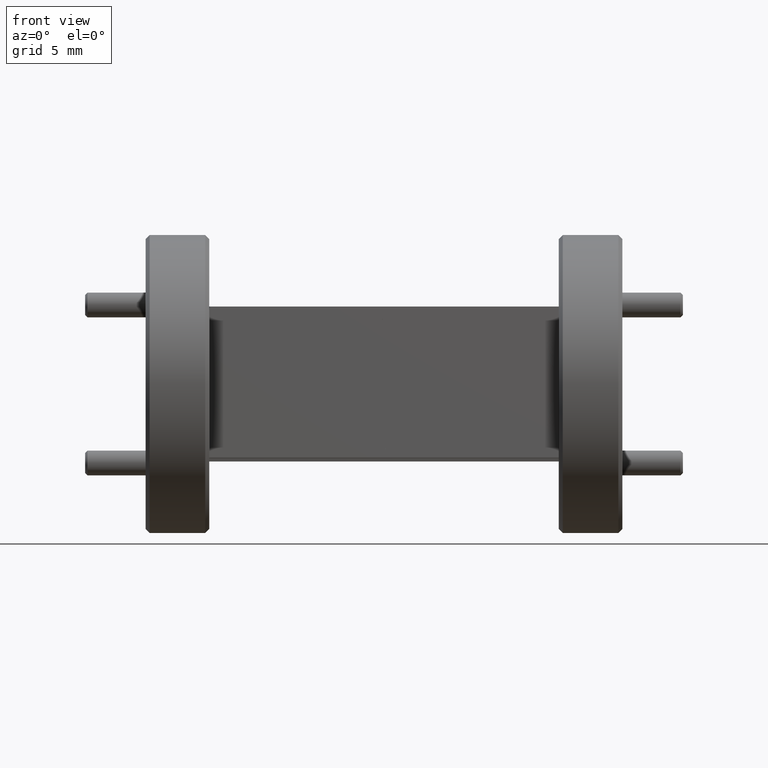
[diagram: clean part render]
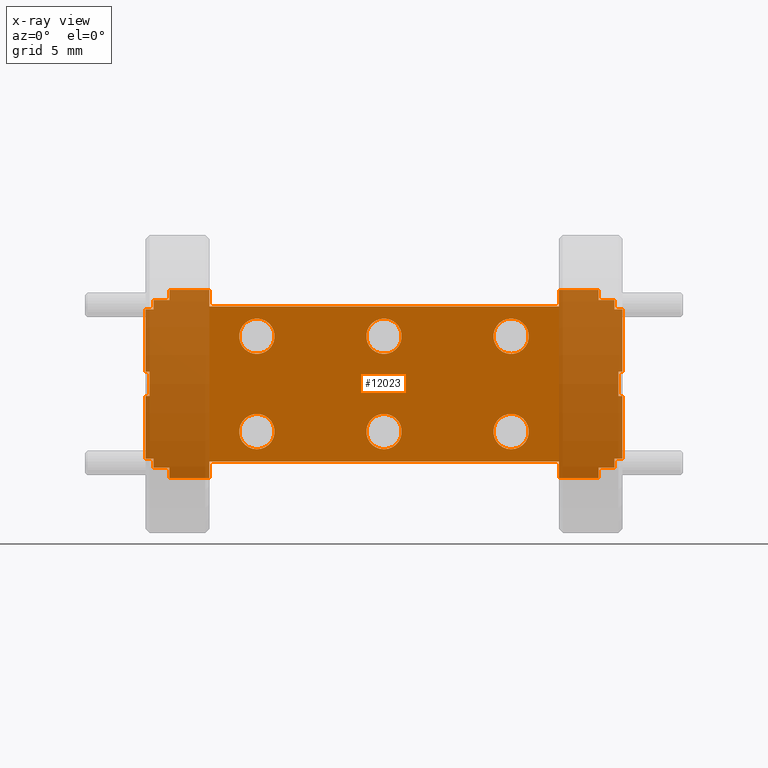
[diagram: x-ray — body ghosted, one internal face saturated and labeled with its STEP entity id]
A machine part, front view, then the same camera in x-ray: the body is ghosted and one INTERNAL B-rep face — a face not visible from any outside direction — is saturated and labeled: STEP entity #12023.
In plain terms, the highlighted planar face has unit normal (0, 1, 0).
Its self-contained STEP definition (entity closure, byte-faithful):
#13 = VERTEX_POINT ( 'NONE', #8938 ) ;
#70 = ORIENTED_EDGE ( 'NONE', *, *, #9017, .T. ) ;
#106 = EDGE_CURVE ( 'NONE', #1790, #223, #3694, .T. ) ;
#145 = VERTEX_POINT ( 'NONE', #11403 ) ;
#147 = DIRECTION ( 'NONE',  ( -0.000000000000000000, -0.000000000000000000, 1.000000000000000000 ) ) ;
#150 = VERTEX_POINT ( 'NONE', #3854 ) ;
#175 = VERTEX_POINT ( 'NONE', #6640 ) ;
#193 = LINE ( 'NONE', #8441, #7579 ) ;
#223 = VERTEX_POINT ( 'NONE', #10336 ) ;
#277 = DIRECTION ( 'NONE',  ( -1.000000000000000000, -0.000000000000000000, -0.000000000000000000 ) ) ;
#283 = DIRECTION ( 'NONE',  ( 1.000000000000000000, -0.000000000000000000, -0.000000000000000000 ) ) ;
#293 = DIRECTION ( 'NONE',  ( 0.000000000000000000, -0.000000000000000000, 1.000000000000000000 ) ) ;
#298 = CARTESIAN_POINT ( 'NONE',  ( 0.01245128250285995435, 0.6965558021064788274, 0.6769535146820031546 ) ) ;
#355 = LINE ( 'NONE', #3203, #12199 ) ;
#386 = CARTESIAN_POINT ( 'NONE',  ( -0.1275487174971400572, 0.6965558021064788274, 0.6844595147780062616 ) ) ;
#434 = CARTESIAN_POINT ( 'NONE',  ( -0.1475487174971400473, 0.6965558021064788274, 1.059447514586000061 ) ) ;
#479 = LINE ( 'NONE', #2294, #3097 ) ;
#500 = LINE ( 'NONE', #2314, #8780 ) ;
#551 = VERTEX_POINT ( 'NONE', #10054 ) ;
#556 = EDGE_CURVE ( 'NONE', #223, #1790, #8992, .T. ) ;
#575 = CARTESIAN_POINT ( 'NONE',  ( -0.1475487174971400473, 0.6965558021064788274, 0.8414535146820031342 ) ) ;
#644 = LINE ( 'NONE', #2702, #7048 ) ;
#751 = VECTOR ( 'NONE', #2477, 39.37007874015748143 ) ;
#760 = CARTESIAN_POINT ( 'NONE',  ( 0.9924512825028599661, 0.6965558021064788274, 1.108728802766129284 ) ) ;
#765 = CARTESIAN_POINT ( 'NONE',  ( 0.1324512825028599794, 0.6965558021064788274, 1.036453514682002641 ) ) ;
#831 = VERTEX_POINT ( 'NONE', #2361 ) ;
#855 = DIRECTION ( 'NONE',  ( -0.000000000000000000, -0.000000000000000000, -1.000000000000000000 ) ) ;
#903 = FACE_BOUND ( 'NONE', #10564, .T. ) ;
#928 = ORIENTED_EDGE ( 'NONE', *, *, #5811, .T. ) ;
#932 = DIRECTION ( 'NONE',  ( -0.000000000000000000, -1.000000000000000000, -0.000000000000000000 ) ) ;
#938 = VECTOR ( 'NONE', #9364, 39.37007874015748143 ) ;
#955 = EDGE_CURVE ( 'NONE', #150, #2991, #5695, .T. ) ;
#972 = FACE_BOUND ( 'NONE', #7963, .T. ) ;
#988 = VECTOR ( 'NONE', #9374, 39.37007874015748143 ) ;
#1032 = EDGE_CURVE ( 'NONE', #13, #1950, #6430, .T. ) ;
#1126 = DIRECTION ( 'NONE',  ( 0.000000000000000000, 0.000000000000000000, -1.000000000000000000 ) ) ;
#1139 = EDGE_CURVE ( 'NONE', #5357, #145, #5113, .T. ) ;
#1171 = EDGE_CURVE ( 'NONE', #11666, #1679, #6120, .T. ) ;
#1182 = ORIENTED_EDGE ( 'NONE', *, *, #7295, .T. ) ;
#1393 = DIRECTION ( 'NONE',  ( 1.000000000000000000, -0.000000000000000000, -0.000000000000000000 ) ) ;
#1513 = CARTESIAN_POINT ( 'NONE',  ( 1.052451282502859797, 0.6965558021064788274, 1.251953514682003110 ) ) ;
#1530 = ORIENTED_EDGE ( 'NONE', *, *, #1032, .F. ) ;
#1539 = CIRCLE ( 'NONE', #12032, 0.04449999999999948441 ) ;
#1555 = CARTESIAN_POINT ( 'NONE',  ( 0.9924512825028599661, 0.6965558021064788274, 0.8719535146820031057 ) ) ;
#1608 = DIRECTION ( 'NONE',  ( 0.000000000000000000, 0.000000000000000000, -1.000000000000000000 ) ) ;
#1648 = CARTESIAN_POINT ( 'NONE',  ( -0.08754871749714007723, 0.6965558021064788274, 1.083219587955932761 ) ) ;
#1658 = CARTESIAN_POINT ( 'NONE',  ( 0.4524512825028599861, 0.6965558021064788274, 0.7519535146820029992 ) ) ;
#1674 = CIRCLE ( 'NONE', #8224, 0.04449999999999948441 ) ;
#1679 = VERTEX_POINT ( 'NONE', #8067 ) ;
#1712 = ORIENTED_EDGE ( 'NONE', *, *, #6934, .F. ) ;
#1743 = ORIENTED_EDGE ( 'NONE', *, *, #955, .F. ) ;
#1759 = DIRECTION ( 'NONE',  ( 0.000000000000000000, 1.000000000000000000, 0.000000000000000000 ) ) ;
#1790 = VERTEX_POINT ( 'NONE', #5124 ) ;
#1836 = EDGE_CURVE ( 'NONE', #2199, #4386, #11557, .T. ) ;
#1856 = CARTESIAN_POINT ( 'NONE',  ( -0.1275487174971400572, 0.6965558021064788274, 1.059447514586000061 ) ) ;
#1886 = ORIENTED_EDGE ( 'NONE', *, *, #10727, .T. ) ;
#1887 = CARTESIAN_POINT ( 'NONE',  ( 0.1324512825028599794, 0.6965558021064788274, 0.7519535146820029992 ) ) ;
#1950 = VERTEX_POINT ( 'NONE', #10484 ) ;
#1954 = ORIENTED_EDGE ( 'NONE', *, *, #4525, .F. ) ;
#1959 = DIRECTION ( 'NONE',  ( -0.000000000000000000, -1.000000000000000000, -0.000000000000000000 ) ) ;
#1961 = CARTESIAN_POINT ( 'NONE',  ( -0.1275487174971400572, 0.6965558021064788274, 0.8719535146820031057 ) ) ;
#1978 = DIRECTION ( 'NONE',  ( 0.000000000000000000, 0.000000000000000000, -1.000000000000000000 ) ) ;
#1986 = DIRECTION ( 'NONE',  ( -1.000000000000000000, 0.000000000000000000, 0.000000000000000000 ) ) ;
#2099 = VERTEX_POINT ( 'NONE', #10012 ) ;
#2142 = DIRECTION ( 'NONE',  ( 0.000000000000000000, 0.000000000000000000, 1.000000000000000000 ) ) ;
#2199 = VERTEX_POINT ( 'NONE', #3348 ) ;
#2202 = DIRECTION ( 'NONE',  ( 1.000000000000000000, -0.000000000000000000, -0.000000000000000000 ) ) ;
#2216 = CARTESIAN_POINT ( 'NONE',  ( 0.7724512825028599927, 0.6965558021064788274, 0.7519535146820029992 ) ) ;
#2242 = ORIENTED_EDGE ( 'NONE', *, *, #8996, .F. ) ;
#2253 = ORIENTED_EDGE ( 'NONE', *, *, #1139, .F. ) ;
#2254 = ORIENTED_EDGE ( 'NONE', *, *, #7170, .T. ) ;
#2294 = CARTESIAN_POINT ( 'NONE',  ( 1.032451282502860002, 0.6965558021064788274, 0.6844595147780062616 ) ) ;
#2314 = CARTESIAN_POINT ( 'NONE',  ( -0.1275487174971400572, 0.6965558021064788274, 1.059447514586000061 ) ) ;
#2361 = CARTESIAN_POINT ( 'NONE',  ( 0.9924512825028599661, 0.6965558021064788274, 0.6351782265978769271 ) ) ;
#2374 = DIRECTION ( 'NONE',  ( 1.000000000000000000, 0.000000000000000000, 0.000000000000000000 ) ) ;
#2385 = CARTESIAN_POINT ( 'NONE',  ( 0.4524512825028599861, 0.6965558021064788274, 0.9919535146820032123 ) ) ;
#2448 = CARTESIAN_POINT ( 'NONE',  ( 1.042451282502859788, 0.6965558021064788274, 0.9024535146820030773 ) ) ;
#2475 = ORIENTED_EDGE ( 'NONE', *, *, #7542, .F. ) ;
#2477 = DIRECTION ( 'NONE',  ( 1.000000000000000000, 0.000000000000000000, 0.000000000000000000 ) ) ;
#2565 = ORIENTED_EDGE ( 'NONE', *, *, #11133, .F. ) ;
#2606 = CARTESIAN_POINT ( 'NONE',  ( -0.08754871749714007723, 0.6965558021064788274, 1.108728802766129284 ) ) ;
#2659 = DIRECTION ( 'NONE',  ( -0.000000000000000000, -1.000000000000000000, -0.000000000000000000 ) ) ;
#2662 = CIRCLE ( 'NONE', #5859, 0.04449999999999948441 ) ;
#2669 = VECTOR ( 'NONE', #3892, 39.37007874015748143 ) ;
#2673 = CIRCLE ( 'NONE', #6864, 0.04449999999999948441 ) ;
#2686 = EDGE_CURVE ( 'NONE', #2199, #5357, #4480, .T. ) ;
#2702 = CARTESIAN_POINT ( 'NONE',  ( 1.052451282502860019, 0.6965558021064788274, 0.9024535146820030773 ) ) ;
#2703 = FACE_OUTER_BOUND ( 'NONE', #10368, .T. ) ;
#2708 = VECTOR ( 'NONE', #5388, 39.37007874015748143 ) ;
#2719 = CARTESIAN_POINT ( 'NONE',  ( 0.4524512825028599861, 0.6965558021064788274, 1.036453514682002641 ) ) ;
#2778 = VECTOR ( 'NONE', #12271, 39.37007874015748143 ) ;
#2789 = ORIENTED_EDGE ( 'NONE', *, *, #9226, .T. ) ;
#2803 = VERTEX_POINT ( 'NONE', #765 ) ;
#2841 = LINE ( 'NONE', #11459, #9607 ) ;
#2894 = LINE ( 'NONE', #1961, #7325 ) ;
#2988 = VERTEX_POINT ( 'NONE', #6546 ) ;
#2991 = VERTEX_POINT ( 'NONE', #11178 ) ;
#3009 = CARTESIAN_POINT ( 'NONE',  ( 1.052451282502860019, 0.6965558021064788274, 0.8414535146820031342 ) ) ;
#3052 = ORIENTED_EDGE ( 'NONE', *, *, #11155, .F. ) ;
#3097 = VECTOR ( 'NONE', #5082, 39.37007874015748143 ) ;
#3127 = EDGE_CURVE ( 'NONE', #1950, #13, #2662, .T. ) ;
#3146 = CARTESIAN_POINT ( 'NONE',  ( -0.08754871749714007723, 0.6965558021064788274, 0.6606874414080734503 ) ) ;
#3147 = CARTESIAN_POINT ( 'NONE',  ( 0.4524512825028599861, 0.6965558021064788274, 0.9474535146820037834 ) ) ;
#3157 = DIRECTION ( 'NONE',  ( 1.000000000000000000, 0.000000000000000000, -0.000000000000000000 ) ) ;
#3164 = VERTEX_POINT ( 'NONE', #8842 ) ;
#3188 = CARTESIAN_POINT ( 'NONE',  ( 0.1324512825028599794, 0.6965558021064788274, 0.7519535146820029992 ) ) ;
#3203 = CARTESIAN_POINT ( 'NONE',  ( -0.08754871749714007723, 0.6965558021064788274, 0.8719535146820031057 ) ) ;
#3260 = VECTOR ( 'NONE', #293, 39.37007874015748143 ) ;
#3262 = VECTOR ( 'NONE', #2202, 39.37007874015748143 ) ;
#3310 = VERTEX_POINT ( 'NONE', #2448 ) ;
#3337 = CARTESIAN_POINT ( 'NONE',  ( 0.9924512825028599661, 0.6965558021064788274, 1.083219587955932761 ) ) ;
#3338 = ORIENTED_EDGE ( 'NONE', *, *, #3127, .F. ) ;
#3348 = CARTESIAN_POINT ( 'NONE',  ( 1.032451282502860002, 0.6965558021064788274, 1.083219587955932761 ) ) ;
#3362 = VERTEX_POINT ( 'NONE', #5079 ) ;
#3399 = DIRECTION ( 'NONE',  ( -0.000000000000000000, -1.000000000000000000, -0.000000000000000000 ) ) ;
#3424 = VERTEX_POINT ( 'NONE', #3146 ) ;
#3493 = CARTESIAN_POINT ( 'NONE',  ( 0.8924512825028599883, 0.6965558021064788274, 0.6769535146820031546 ) ) ;
#3512 = CARTESIAN_POINT ( 'NONE',  ( 0.7724512825028599927, 0.6965558021064788274, 0.7074535146820035703 ) ) ;
#3514 = LINE ( 'NONE', #3767, #3913 ) ;
#3539 = DIRECTION ( 'NONE',  ( 0.000000000000000000, 0.000000000000000000, -1.000000000000000000 ) ) ;
#3554 = ORIENTED_EDGE ( 'NONE', *, *, #6792, .F. ) ;
#3603 = DIRECTION ( 'NONE',  ( 0.000000000000000000, 0.000000000000000000, -1.000000000000000000 ) ) ;
#3608 = CARTESIAN_POINT ( 'NONE',  ( 0.7724512825028599927, 0.6965558021064788274, 0.9919535146820032123 ) ) ;
#3615 = EDGE_CURVE ( 'NONE', #11666, #831, #4894, .T. ) ;
#3694 = CIRCLE ( 'NONE', #5280, 0.04449999999999948441 ) ;
#3767 = CARTESIAN_POINT ( 'NONE',  ( -0.1375487174971400106, 0.6965558021064788274, 0.8414535146820031342 ) ) ;
#3774 = DIRECTION ( 'NONE',  ( 0.000000000000000000, 0.000000000000000000, -1.000000000000000000 ) ) ;
#3788 = CARTESIAN_POINT ( 'NONE',  ( 0.8924512825028599883, 0.6965558021064788274, 0.6769535146820031546 ) ) ;
#3837 = CARTESIAN_POINT ( 'NONE',  ( 0.01245128250286002200, 0.6965558021064788274, 1.108728802766129284 ) ) ;
#3854 = CARTESIAN_POINT ( 'NONE',  ( 1.042451282502859788, 0.6965558021064788274, 0.8414535146820031342 ) ) ;
#3892 = DIRECTION ( 'NONE',  ( 1.000000000000000000, 0.000000000000000000, -0.000000000000000000 ) ) ;
#3893 = DIRECTION ( 'NONE',  ( -1.000000000000000000, 0.000000000000000000, 0.000000000000000000 ) ) ;
#3895 = FACE_BOUND ( 'NONE', #12268, .T. ) ;
#3913 = VECTOR ( 'NONE', #11057, 39.37007874015748143 ) ;
#3949 = CIRCLE ( 'NONE', #6715, 0.04449999999999948441 ) ;
#3969 = CARTESIAN_POINT ( 'NONE',  ( 0.9924512825028599661, 0.6965558021064788274, 0.8719535146820031057 ) ) ;
#3980 = VERTEX_POINT ( 'NONE', #2719 ) ;
#4015 = ORIENTED_EDGE ( 'NONE', *, *, #4349, .F. ) ;
#4050 = CIRCLE ( 'NONE', #5631, 0.04449999999999948441 ) ;
#4082 = VERTEX_POINT ( 'NONE', #3512 ) ;
#4117 = LINE ( 'NONE', #7890, #9773 ) ;
#4138 = CARTESIAN_POINT ( 'NONE',  ( -0.1475487174971400473, 0.6965558021064788274, 1.251953514682003110 ) ) ;
#4152 = DIRECTION ( 'NONE',  ( -0.000000000000000000, -1.000000000000000000, -0.000000000000000000 ) ) ;
#4186 = VECTOR ( 'NONE', #1986, 39.37007874015748143 ) ;
#4191 = DIRECTION ( 'NONE',  ( -0.000000000000000000, -1.000000000000000000, -0.000000000000000000 ) ) ;
#4254 = LINE ( 'NONE', #1513, #7089 ) ;
#4270 = DIRECTION ( 'NONE',  ( 0.000000000000000000, -0.000000000000000000, 1.000000000000000000 ) ) ;
#4302 = ORIENTED_EDGE ( 'NONE', *, *, #6423, .F. ) ;
#4349 = EDGE_CURVE ( 'NONE', #11276, #5593, #355, .T. ) ;
#4369 = VERTEX_POINT ( 'NONE', #8050 ) ;
#4386 = VERTEX_POINT ( 'NONE', #3337 ) ;
#4453 = DIRECTION ( 'NONE',  ( 0.000000000000000000, 0.000000000000000000, -1.000000000000000000 ) ) ;
#4454 = CARTESIAN_POINT ( 'NONE',  ( 0.1324512825028599794, 0.6965558021064788274, 0.9919535146820032123 ) ) ;
#4480 = LINE ( 'NONE', #6343, #8255 ) ;
#4525 = EDGE_CURVE ( 'NONE', #4369, #3362, #3514, .T. ) ;
#4581 = CARTESIAN_POINT ( 'NONE',  ( -0.1475487174971400473, 0.6965558021064788274, 0.6844595147780061506 ) ) ;
#4591 = EDGE_CURVE ( 'NONE', #10805, #5593, #8601, .T. ) ;
#4659 = VECTOR ( 'NONE', #6116, 39.37007874015748143 ) ;
#4690 = VECTOR ( 'NONE', #147, 39.37007874015748143 ) ;
#4754 = CARTESIAN_POINT ( 'NONE',  ( 0.4524512825028599861, 0.6965558021064788274, 0.8719535146820031057 ) ) ;
#4781 = LINE ( 'NONE', #9409, #2778 ) ;
#4821 = DIRECTION ( 'NONE',  ( 0.000000000000000000, 0.000000000000000000, -1.000000000000000000 ) ) ;
#4822 = ORIENTED_EDGE ( 'NONE', *, *, #11027, .T. ) ;
#4863 = VECTOR ( 'NONE', #1393, 39.37007874015748143 ) ;
#4894 = LINE ( 'NONE', #3969, #7814 ) ;
#4936 = VERTEX_POINT ( 'NONE', #11993 ) ;
#5059 = CIRCLE ( 'NONE', #9602, 0.04449999999999948441 ) ;
#5079 = CARTESIAN_POINT ( 'NONE',  ( -0.1375487174971400106, 0.6965558021064788274, 0.9024535146820030773 ) ) ;
#5082 = DIRECTION ( 'NONE',  ( -1.000000000000000000, 0.000000000000000000, 0.000000000000000000 ) ) ;
#5113 = LINE ( 'NONE', #6000, #3262 ) ;
#5124 = CARTESIAN_POINT ( 'NONE',  ( 0.7724512825028599927, 0.6965558021064788274, 1.036453514682002641 ) ) ;
#5176 = EDGE_CURVE ( 'NONE', #3980, #9287, #4050, .T. ) ;
#5280 = AXIS2_PLACEMENT_3D ( 'NONE', #6339, #11851, #3539 ) ;
#5282 = VERTEX_POINT ( 'NONE', #5475 ) ;
#5350 = LINE ( 'NONE', #5473, #11599 ) ;
#5355 = ORIENTED_EDGE ( 'NONE', *, *, #3615, .F. ) ;
#5357 = VERTEX_POINT ( 'NONE', #9426 ) ;
#5382 = ORIENTED_EDGE ( 'NONE', *, *, #1171, .T. ) ;
#5384 = ORIENTED_EDGE ( 'NONE', *, *, #11500, .F. ) ;
#5388 = DIRECTION ( 'NONE',  ( -1.000000000000000000, -0.000000000000000000, -0.000000000000000000 ) ) ;
#5420 = ORIENTED_EDGE ( 'NONE', *, *, #9389, .F. ) ;
#5440 = VERTEX_POINT ( 'NONE', #9920 ) ;
#5442 = EDGE_LOOP ( 'NONE', ( #8766, #11543 ) ) ;
#5473 = CARTESIAN_POINT ( 'NONE',  ( -0.1475487174971400473, 0.6965558021064788274, 0.6351782265978769271 ) ) ;
#5475 = CARTESIAN_POINT ( 'NONE',  ( 1.052451282502860019, 0.6965558021064788274, 0.9024535146820030773 ) ) ;
#5501 = VERTEX_POINT ( 'NONE', #434 ) ;
#5519 = LINE ( 'NONE', #1648, #2708 ) ;
#5564 = EDGE_CURVE ( 'NONE', #12079, #6632, #6164, .T. ) ;
#5593 = VERTEX_POINT ( 'NONE', #2606 ) ;
#5631 = AXIS2_PLACEMENT_3D ( 'NONE', #2385, #4191, #7965 ) ;
#5646 = ORIENTED_EDGE ( 'NONE', *, *, #7052, .F. ) ;
#5695 = LINE ( 'NONE', #3009, #2669 ) ;
#5702 = FACE_BOUND ( 'NONE', #8001, .T. ) ;
#5746 = CARTESIAN_POINT ( 'NONE',  ( 0.8924512825028599883, 0.6965558021064788274, 1.108728802766129284 ) ) ;
#5797 = EDGE_CURVE ( 'NONE', #12191, #9325, #7632, .T. ) ;
#5803 = ORIENTED_EDGE ( 'NONE', *, *, #1836, .T. ) ;
#5811 = EDGE_CURVE ( 'NONE', #9943, #6609, #4781, .T. ) ;
#5817 = CARTESIAN_POINT ( 'NONE',  ( -0.1275487174971400572, 0.6965558021064788274, 1.083219587955932761 ) ) ;
#5831 = FACE_BOUND ( 'NONE', #8817, .T. ) ;
#5859 = AXIS2_PLACEMENT_3D ( 'NONE', #3188, #6057, #4821 ) ;
#6000 = CARTESIAN_POINT ( 'NONE',  ( 1.032451282502860002, 0.6965558021064788274, 1.059447514586000061 ) ) ;
#6005 = ORIENTED_EDGE ( 'NONE', *, *, #10701, .F. ) ;
#6018 = ORIENTED_EDGE ( 'NONE', *, *, #6286, .T. ) ;
#6021 = CARTESIAN_POINT ( 'NONE',  ( 0.9924512825028599661, 0.6965558021064788274, 0.6606874414080734503 ) ) ;
#6056 = CARTESIAN_POINT ( 'NONE',  ( 0.8924512825028599883, 0.6965558021064788274, 1.066953514682003279 ) ) ;
#6057 = DIRECTION ( 'NONE',  ( -0.000000000000000000, -1.000000000000000000, -0.000000000000000000 ) ) ;
#6116 = DIRECTION ( 'NONE',  ( 0.000000000000000000, 0.000000000000000000, -1.000000000000000000 ) ) ;
#6120 = LINE ( 'NONE', #7847, #4863 ) ;
#6164 = CIRCLE ( 'NONE', #11679, 0.04449999999999948441 ) ;
#6223 = DIRECTION ( 'NONE',  ( -1.000000000000000000, -0.000000000000000000, -0.000000000000000000 ) ) ;
#6286 = EDGE_CURVE ( 'NONE', #9325, #10805, #6603, .T. ) ;
#6292 = ORIENTED_EDGE ( 'NONE', *, *, #5564, .F. ) ;
#6313 = VECTOR ( 'NONE', #11580, 39.37007874015748143 ) ;
#6339 = CARTESIAN_POINT ( 'NONE',  ( 0.7724512825028599927, 0.6965558021064788274, 0.9919535146820032123 ) ) ;
#6343 = CARTESIAN_POINT ( 'NONE',  ( 1.032451282502860002, 0.6965558021064788274, 0.8719535146820031057 ) ) ;
#6423 = EDGE_CURVE ( 'NONE', #7951, #9757, #8837, .T. ) ;
#6427 = VECTOR ( 'NONE', #855, 39.37007874015748143 ) ;
#6430 = CIRCLE ( 'NONE', #7643, 0.04449999999999948441 ) ;
#6460 = VECTOR ( 'NONE', #277, 39.37007874015748143 ) ;
#6510 = DIRECTION ( 'NONE',  ( -0.000000000000000000, -1.000000000000000000, -0.000000000000000000 ) ) ;
#6511 = CARTESIAN_POINT ( 'NONE',  ( 1.032451282502860002, 0.6965558021064788274, 0.8719535146820031057 ) ) ;
#6545 = DIRECTION ( 'NONE',  ( 0.000000000000000000, -0.000000000000000000, 1.000000000000000000 ) ) ;
#6546 = CARTESIAN_POINT ( 'NONE',  ( -0.08754871749714007723, 0.6965558021064788274, 0.6351782265978769271 ) ) ;
#6603 = LINE ( 'NONE', #10619, #11707 ) ;
#6609 = VERTEX_POINT ( 'NONE', #5746 ) ;
#6632 = VERTEX_POINT ( 'NONE', #11337 ) ;
#6640 = CARTESIAN_POINT ( 'NONE',  ( -0.1275487174971400572, 0.6965558021064788274, 0.6606874414080734503 ) ) ;
#6693 = EDGE_CURVE ( 'NONE', #3362, #11231, #193, .T. ) ;
#6715 = AXIS2_PLACEMENT_3D ( 'NONE', #11131, #6510, #11963 ) ;
#6747 = VECTOR ( 'NONE', #10277, 39.37007874015748143 ) ;
#6778 = LINE ( 'NONE', #3788, #7899 ) ;
#6792 = EDGE_CURVE ( 'NONE', #5501, #10096, #500, .T. ) ;
#6864 = AXIS2_PLACEMENT_3D ( 'NONE', #4454, #12018, #3774 ) ;
#6877 = DIRECTION ( 'NONE',  ( -1.000000000000000000, 0.000000000000000000, 0.000000000000000000 ) ) ;
#6880 = LINE ( 'NONE', #9706, #11385 ) ;
#6887 = CARTESIAN_POINT ( 'NONE',  ( -0.08754871749714007723, 0.6965558021064788274, 0.8719535146820031057 ) ) ;
#6934 = EDGE_CURVE ( 'NONE', #2803, #2099, #3949, .T. ) ;
#6941 = CARTESIAN_POINT ( 'NONE',  ( 0.01245128250285995435, 0.6965558021064788274, 1.066953514682003279 ) ) ;
#6985 = LINE ( 'NONE', #10737, #938 ) ;
#7031 = EDGE_CURVE ( 'NONE', #12283, #8483, #6778, .T. ) ;
#7036 = CARTESIAN_POINT ( 'NONE',  ( 0.4524512825028599861, 0.6965558021064788274, 0.7519535146820029992 ) ) ;
#7048 = VECTOR ( 'NONE', #3893, 39.37007874015748143 ) ;
#7052 = EDGE_CURVE ( 'NONE', #4082, #9136, #1539, .T. ) ;
#7056 = ORIENTED_EDGE ( 'NONE', *, *, #5176, .F. ) ;
#7089 = VECTOR ( 'NONE', #8036, 39.37007874015748143 ) ;
#7138 = ORIENTED_EDGE ( 'NONE', *, *, #8200, .F. ) ;
#7170 = EDGE_CURVE ( 'NONE', #9824, #4936, #10828, .T. ) ;
#7228 = DIRECTION ( 'NONE',  ( -0.000000000000000000, -1.000000000000000000, -0.000000000000000000 ) ) ;
#7272 = DIRECTION ( 'NONE',  ( 0.000000000000000000, 0.000000000000000000, -1.000000000000000000 ) ) ;
#7295 = EDGE_CURVE ( 'NONE', #175, #3424, #11898, .T. ) ;
#7321 = DIRECTION ( 'NONE',  ( 1.000000000000000000, -0.000000000000000000, -0.000000000000000000 ) ) ;
#7325 = VECTOR ( 'NONE', #7604, 39.37007874015748143 ) ;
#7400 = LINE ( 'NONE', #8387, #988 ) ;
#7428 = CARTESIAN_POINT ( 'NONE',  ( 0.7724512825028599927, 0.6965558021064788274, 0.7964535146820025391 ) ) ;
#7473 = EDGE_CURVE ( 'NONE', #2099, #2803, #2673, .T. ) ;
#7508 = ORIENTED_EDGE ( 'NONE', *, *, #11253, .F. ) ;
#7512 = ORIENTED_EDGE ( 'NONE', *, *, #7473, .F. ) ;
#7542 = EDGE_CURVE ( 'NONE', #2991, #5440, #2841, .T. ) ;
#7579 = VECTOR ( 'NONE', #8500, 39.37007874015748143 ) ;
#7604 = DIRECTION ( 'NONE',  ( 0.000000000000000000, -0.000000000000000000, 1.000000000000000000 ) ) ;
#7632 = LINE ( 'NONE', #8484, #4186 ) ;
#7636 = CARTESIAN_POINT ( 'NONE',  ( 0.7724512825028599927, 0.6965558021064788274, 0.7519535146820029992 ) ) ;
#7643 = AXIS2_PLACEMENT_3D ( 'NONE', #1887, #1959, #9510 ) ;
#7682 = PLANE ( 'NONE',  #7750 ) ;
#7701 = LINE ( 'NONE', #11390, #6427 ) ;
#7719 = ORIENTED_EDGE ( 'NONE', *, *, #2686, .F. ) ;
#7750 = AXIS2_PLACEMENT_3D ( 'NONE', #4754, #1759, #6545 ) ;
#7814 = VECTOR ( 'NONE', #11511, 39.37007874015748143 ) ;
#7847 = CARTESIAN_POINT ( 'NONE',  ( 0.9924512825028599661, 0.6965558021064788274, 0.6606874414080734503 ) ) ;
#7890 = CARTESIAN_POINT ( 'NONE',  ( 1.052451282502860019, 0.6965558021064788274, 0.8414535146820031342 ) ) ;
#7899 = VECTOR ( 'NONE', #8422, 39.37007874015748143 ) ;
#7907 = ORIENTED_EDGE ( 'NONE', *, *, #6693, .F. ) ;
#7910 = DIRECTION ( 'NONE',  ( -0.000000000000000000, -0.000000000000000000, 1.000000000000000000 ) ) ;
#7927 = DIRECTION ( 'NONE',  ( 0.000000000000000000, 0.000000000000000000, -1.000000000000000000 ) ) ;
#7938 = LINE ( 'NONE', #6887, #3260 ) ;
#7949 = LINE ( 'NONE', #11071, #10195 ) ;
#7951 = VERTEX_POINT ( 'NONE', #4581 ) ;
#7956 = CARTESIAN_POINT ( 'NONE',  ( -0.08754871749714007723, 0.6965558021064788274, 1.083219587955932761 ) ) ;
#7963 = EDGE_LOOP ( 'NONE', ( #1530, #3338 ) ) ;
#7965 = DIRECTION ( 'NONE',  ( 0.000000000000000000, 0.000000000000000000, -1.000000000000000000 ) ) ;
#8001 = EDGE_LOOP ( 'NONE', ( #6292, #10856 ) ) ;
#8021 = LINE ( 'NONE', #1555, #4659 ) ;
#8036 = DIRECTION ( 'NONE',  ( 0.000000000000000000, 0.000000000000000000, -1.000000000000000000 ) ) ;
#8050 = CARTESIAN_POINT ( 'NONE',  ( -0.1375487174971400106, 0.6965558021064788274, 0.8414535146820031342 ) ) ;
#8061 = CIRCLE ( 'NONE', #11815, 0.04449999999999948441 ) ;
#8067 = CARTESIAN_POINT ( 'NONE',  ( 1.032451282502860002, 0.6965558021064788274, 0.6606874414080734503 ) ) ;
#8146 = EDGE_CURVE ( 'NONE', #145, #5282, #4254, .T. ) ;
#8200 = EDGE_CURVE ( 'NONE', #175, #551, #6985, .T. ) ;
#8224 = AXIS2_PLACEMENT_3D ( 'NONE', #2216, #4152, #7927 ) ;
#8255 = VECTOR ( 'NONE', #1608, 39.37007874015748143 ) ;
#8359 = LINE ( 'NONE', #6511, #6747 ) ;
#8375 = VERTEX_POINT ( 'NONE', #5817 ) ;
#8385 = EDGE_CURVE ( 'NONE', #11231, #5501, #9558, .T. ) ;
#8387 = CARTESIAN_POINT ( 'NONE',  ( 1.042451282502859788, 0.6965558021064788274, 0.8414535146820031342 ) ) ;
#8394 = AXIS2_PLACEMENT_3D ( 'NONE', #3608, #7228, #10972 ) ;
#8407 = ORIENTED_EDGE ( 'NONE', *, *, #4591, .T. ) ;
#8422 = DIRECTION ( 'NONE',  ( 0.000000000000000000, 0.000000000000000000, -1.000000000000000000 ) ) ;
#8441 = CARTESIAN_POINT ( 'NONE',  ( 1.052451282502860019, 0.6965558021064788274, 0.9024535146820030773 ) ) ;
#8483 = VERTEX_POINT ( 'NONE', #9742 ) ;
#8484 = CARTESIAN_POINT ( 'NONE',  ( 0.8924512825028599883, 0.6965558021064788274, 1.066953514682003279 ) ) ;
#8500 = DIRECTION ( 'NONE',  ( -1.000000000000000000, 0.000000000000000000, 0.000000000000000000 ) ) ;
#8502 = EDGE_CURVE ( 'NONE', #551, #7951, #9929, .T. ) ;
#8590 = CARTESIAN_POINT ( 'NONE',  ( -0.1475487174971399085, 0.6965558021064788274, 0.9024535146820030773 ) ) ;
#8593 = CARTESIAN_POINT ( 'NONE',  ( 0.4524512825028599861, 0.6965558021064788274, 0.7074535146820035703 ) ) ;
#8601 = LINE ( 'NONE', #10631, #6460 ) ;
#8749 = EDGE_CURVE ( 'NONE', #2988, #9824, #5350, .T. ) ;
#8766 = ORIENTED_EDGE ( 'NONE', *, *, #556, .F. ) ;
#8780 = VECTOR ( 'NONE', #2374, 39.37007874015748143 ) ;
#8787 = CARTESIAN_POINT ( 'NONE',  ( 0.9924512825028599661, 0.6965558021064788274, 1.083219587955932761 ) ) ;
#8817 = EDGE_LOOP ( 'NONE', ( #5646, #11242 ) ) ;
#8837 = LINE ( 'NONE', #4138, #8945 ) ;
#8842 = CARTESIAN_POINT ( 'NONE',  ( 1.032451282502860002, 0.6965558021064788274, 0.6844595147780062616 ) ) ;
#8938 = CARTESIAN_POINT ( 'NONE',  ( 0.1324512825028599794, 0.6965558021064788274, 0.7074535146820035703 ) ) ;
#8945 = VECTOR ( 'NONE', #7910, 39.37007874015748143 ) ;
#8992 = CIRCLE ( 'NONE', #8394, 0.04449999999999948441 ) ;
#8996 = EDGE_CURVE ( 'NONE', #9757, #4369, #4117, .T. ) ;
#9017 = EDGE_CURVE ( 'NONE', #4936, #12283, #7949, .T. ) ;
#9041 = ORIENTED_EDGE ( 'NONE', *, *, #9755, .F. ) ;
#9122 = ORIENTED_EDGE ( 'NONE', *, *, #8502, .F. ) ;
#9136 = VERTEX_POINT ( 'NONE', #7428 ) ;
#9226 = EDGE_CURVE ( 'NONE', #6609, #12191, #7701, .T. ) ;
#9287 = VERTEX_POINT ( 'NONE', #3147 ) ;
#9325 = VERTEX_POINT ( 'NONE', #6941 ) ;
#9364 = DIRECTION ( 'NONE',  ( 0.000000000000000000, -0.000000000000000000, 1.000000000000000000 ) ) ;
#9374 = DIRECTION ( 'NONE',  ( 0.000000000000000000, 0.000000000000000000, -1.000000000000000000 ) ) ;
#9389 = EDGE_CURVE ( 'NONE', #2988, #3424, #7938, .T. ) ;
#9409 = CARTESIAN_POINT ( 'NONE',  ( 1.052451282502860019, 0.6965558021064788274, 1.108728802766129284 ) ) ;
#9426 = CARTESIAN_POINT ( 'NONE',  ( 1.032451282502860002, 0.6965558021064788274, 1.059447514586000283 ) ) ;
#9510 = DIRECTION ( 'NONE',  ( 0.000000000000000000, 0.000000000000000000, -1.000000000000000000 ) ) ;
#9558 = LINE ( 'NONE', #10545, #4690 ) ;
#9602 = AXIS2_PLACEMENT_3D ( 'NONE', #7036, #10790, #3603 ) ;
#9607 = VECTOR ( 'NONE', #1978, 39.37007874015748143 ) ;
#9706 = CARTESIAN_POINT ( 'NONE',  ( 1.052451282502860019, 0.6965558021064788274, 0.6351782265978769271 ) ) ;
#9742 = CARTESIAN_POINT ( 'NONE',  ( 0.8924512825028599883, 0.6965558021064788274, 0.6351782265978769271 ) ) ;
#9755 = EDGE_CURVE ( 'NONE', #9943, #4386, #8021, .T. ) ;
#9757 = VERTEX_POINT ( 'NONE', #575 ) ;
#9773 = VECTOR ( 'NONE', #3157, 39.37007874015748143 ) ;
#9824 = VERTEX_POINT ( 'NONE', #11914 ) ;
#9855 = EDGE_CURVE ( 'NONE', #6632, #12079, #5059, .T. ) ;
#9920 = CARTESIAN_POINT ( 'NONE',  ( 1.052451282502860019, 0.6965558021064788274, 0.6844595147780062616 ) ) ;
#9929 = LINE ( 'NONE', #386, #10530 ) ;
#9943 = VERTEX_POINT ( 'NONE', #760 ) ;
#10012 = CARTESIAN_POINT ( 'NONE',  ( 0.1324512825028599794, 0.6965558021064788274, 0.9474535146820037834 ) ) ;
#10054 = CARTESIAN_POINT ( 'NONE',  ( -0.1275487174971400572, 0.6965558021064788274, 0.6844595147780061506 ) ) ;
#10096 = VERTEX_POINT ( 'NONE', #1856 ) ;
#10116 = ORIENTED_EDGE ( 'NONE', *, *, #5797, .T. ) ;
#10157 = ORIENTED_EDGE ( 'NONE', *, *, #8385, .F. ) ;
#10195 = VECTOR ( 'NONE', #7321, 39.37007874015748143 ) ;
#10202 = CARTESIAN_POINT ( 'NONE',  ( -0.08754871749714007723, 0.6965558021064788274, 0.6606874414080734503 ) ) ;
#10277 = DIRECTION ( 'NONE',  ( 0.000000000000000000, 0.000000000000000000, -1.000000000000000000 ) ) ;
#10297 = ORIENTED_EDGE ( 'NONE', *, *, #10566, .F. ) ;
#10336 = CARTESIAN_POINT ( 'NONE',  ( 0.7724512825028599927, 0.6965558021064788274, 0.9474535146820037834 ) ) ;
#10368 = EDGE_LOOP ( 'NONE', ( #7719, #5803, #9041, #928, #2789, #10116, #6018, #8407, #4015, #1886, #3052, #3554, #10157, #7907, #1954, #2242, #4302, #9122, #7138, #1182, #5420, #11946, #2254, #70, #11741, #4822, #5355, #5382, #5384, #10297, #2475, #1743, #7508, #2565, #10862, #2253 ) ) ;
#10377 = VECTOR ( 'NONE', #6877, 39.37007874015748143 ) ;
#10484 = CARTESIAN_POINT ( 'NONE',  ( 0.1324512825028599794, 0.6965558021064788274, 0.7964535146820025391 ) ) ;
#10530 = VECTOR ( 'NONE', #6223, 39.37007874015748143 ) ;
#10545 = CARTESIAN_POINT ( 'NONE',  ( -0.1475487174971400473, 0.6965558021064788274, 1.251953514682003110 ) ) ;
#10564 = EDGE_LOOP ( 'NONE', ( #6005, #7056 ) ) ;
#10566 = EDGE_CURVE ( 'NONE', #5440, #3164, #479, .T. ) ;
#10619 = CARTESIAN_POINT ( 'NONE',  ( 0.01245128250285995435, 0.6965558021064788274, 1.066953514682003279 ) ) ;
#10631 = CARTESIAN_POINT ( 'NONE',  ( -0.1475487174971400473, 0.6965558021064788274, 1.108728802766129284 ) ) ;
#10701 = EDGE_CURVE ( 'NONE', #9287, #3980, #8061, .T. ) ;
#10727 = EDGE_CURVE ( 'NONE', #11276, #8375, #5519, .T. ) ;
#10737 = CARTESIAN_POINT ( 'NONE',  ( -0.1275487174971400572, 0.6965558021064788274, 0.8719535146820031057 ) ) ;
#10790 = DIRECTION ( 'NONE',  ( -0.000000000000000000, -1.000000000000000000, -0.000000000000000000 ) ) ;
#10805 = VERTEX_POINT ( 'NONE', #3837 ) ;
#10828 = LINE ( 'NONE', #298, #6313 ) ;
#10856 = ORIENTED_EDGE ( 'NONE', *, *, #9855, .F. ) ;
#10862 = ORIENTED_EDGE ( 'NONE', *, *, #8146, .F. ) ;
#10932 = EDGE_CURVE ( 'NONE', #9136, #4082, #1674, .T. ) ;
#10972 = DIRECTION ( 'NONE',  ( 0.000000000000000000, 0.000000000000000000, -1.000000000000000000 ) ) ;
#11027 = EDGE_CURVE ( 'NONE', #8483, #831, #6880, .T. ) ;
#11057 = DIRECTION ( 'NONE',  ( 0.000000000000000000, 0.000000000000000000, 1.000000000000000000 ) ) ;
#11071 = CARTESIAN_POINT ( 'NONE',  ( 0.8924512825028599883, 0.6965558021064788274, 0.6769535146820031546 ) ) ;
#11131 = CARTESIAN_POINT ( 'NONE',  ( 0.1324512825028599794, 0.6965558021064788274, 0.9919535146820032123 ) ) ;
#11133 = EDGE_CURVE ( 'NONE', #5282, #3310, #644, .T. ) ;
#11155 = EDGE_CURVE ( 'NONE', #10096, #8375, #2894, .T. ) ;
#11178 = CARTESIAN_POINT ( 'NONE',  ( 1.052451282502860019, 0.6965558021064788274, 0.8414535146820031342 ) ) ;
#11191 = CARTESIAN_POINT ( 'NONE',  ( 0.4524512825028599861, 0.6965558021064788274, 0.9919535146820032123 ) ) ;
#11231 = VERTEX_POINT ( 'NONE', #8590 ) ;
#11242 = ORIENTED_EDGE ( 'NONE', *, *, #10932, .F. ) ;
#11253 = EDGE_CURVE ( 'NONE', #3310, #150, #7400, .T. ) ;
#11276 = VERTEX_POINT ( 'NONE', #7956 ) ;
#11337 = CARTESIAN_POINT ( 'NONE',  ( 0.4524512825028599861, 0.6965558021064788274, 0.7964535146820025391 ) ) ;
#11363 = FACE_BOUND ( 'NONE', #5442, .T. ) ;
#11385 = VECTOR ( 'NONE', #283, 39.37007874015748143 ) ;
#11390 = CARTESIAN_POINT ( 'NONE',  ( 0.8924512825028599883, 0.6965558021064788274, 1.066953514682003279 ) ) ;
#11403 = CARTESIAN_POINT ( 'NONE',  ( 1.052451282502859797, 0.6965558021064788274, 1.059447514586000061 ) ) ;
#11459 = CARTESIAN_POINT ( 'NONE',  ( 1.052451282502859797, 0.6965558021064788274, 1.251953514682003110 ) ) ;
#11500 = EDGE_CURVE ( 'NONE', #3164, #1679, #8359, .T. ) ;
#11511 = DIRECTION ( 'NONE',  ( 0.000000000000000000, 0.000000000000000000, -1.000000000000000000 ) ) ;
#11543 = ORIENTED_EDGE ( 'NONE', *, *, #106, .F. ) ;
#11557 = LINE ( 'NONE', #8787, #10377 ) ;
#11580 = DIRECTION ( 'NONE',  ( -0.000000000000000000, -0.000000000000000000, 1.000000000000000000 ) ) ;
#11599 = VECTOR ( 'NONE', #12149, 39.37007874015748143 ) ;
#11666 = VERTEX_POINT ( 'NONE', #6021 ) ;
#11679 = AXIS2_PLACEMENT_3D ( 'NONE', #1658, #2659, #7272 ) ;
#11707 = VECTOR ( 'NONE', #2142, 39.37007874015748143 ) ;
#11741 = ORIENTED_EDGE ( 'NONE', *, *, #7031, .T. ) ;
#11815 = AXIS2_PLACEMENT_3D ( 'NONE', #11191, #3399, #4453 ) ;
#11851 = DIRECTION ( 'NONE',  ( -0.000000000000000000, -1.000000000000000000, -0.000000000000000000 ) ) ;
#11898 = LINE ( 'NONE', #10202, #751 ) ;
#11914 = CARTESIAN_POINT ( 'NONE',  ( 0.01245128250285995435, 0.6965558021064788274, 0.6351782265978772601 ) ) ;
#11946 = ORIENTED_EDGE ( 'NONE', *, *, #8749, .T. ) ;
#11963 = DIRECTION ( 'NONE',  ( 0.000000000000000000, 0.000000000000000000, -1.000000000000000000 ) ) ;
#11993 = CARTESIAN_POINT ( 'NONE',  ( 0.01245128250285995435, 0.6965558021064788274, 0.6769535146820031546 ) ) ;
#12018 = DIRECTION ( 'NONE',  ( -0.000000000000000000, -1.000000000000000000, -0.000000000000000000 ) ) ;
#12023 = ADVANCED_FACE ( 'NONE', ( #5831, #972, #5702, #3895, #11363, #903, #2703 ), #7682, .F. ) ;
#12032 = AXIS2_PLACEMENT_3D ( 'NONE', #7636, #932, #1126 ) ;
#12079 = VERTEX_POINT ( 'NONE', #8593 ) ;
#12149 = DIRECTION ( 'NONE',  ( 1.000000000000000000, 0.000000000000000000, 0.000000000000000000 ) ) ;
#12191 = VERTEX_POINT ( 'NONE', #6056 ) ;
#12199 = VECTOR ( 'NONE', #4270, 39.37007874015748143 ) ;
#12268 = EDGE_LOOP ( 'NONE', ( #7512, #1712 ) ) ;
#12271 = DIRECTION ( 'NONE',  ( -1.000000000000000000, 0.000000000000000000, 0.000000000000000000 ) ) ;
#12283 = VERTEX_POINT ( 'NONE', #3493 ) ;